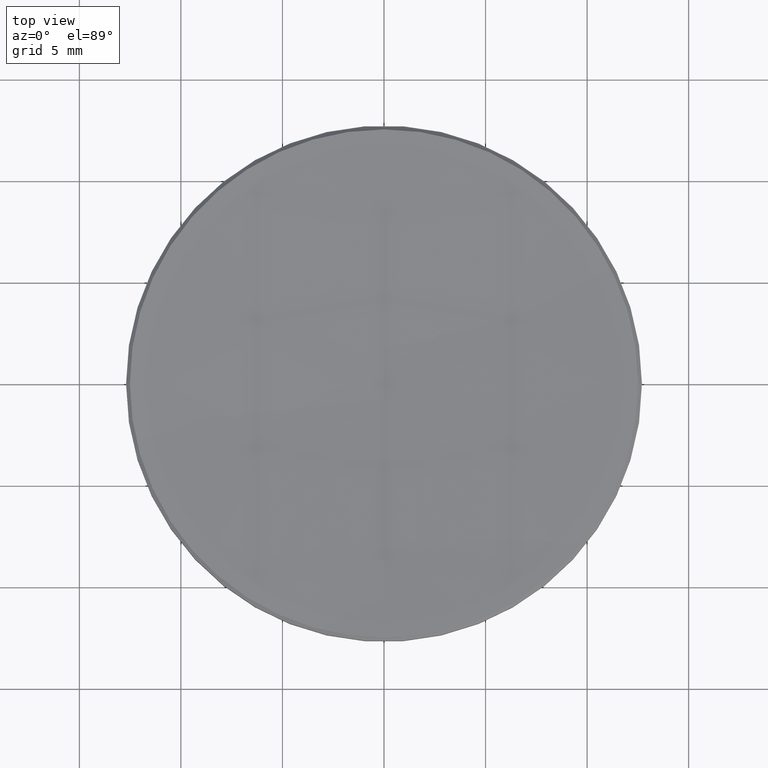
[diagram: clean part render]
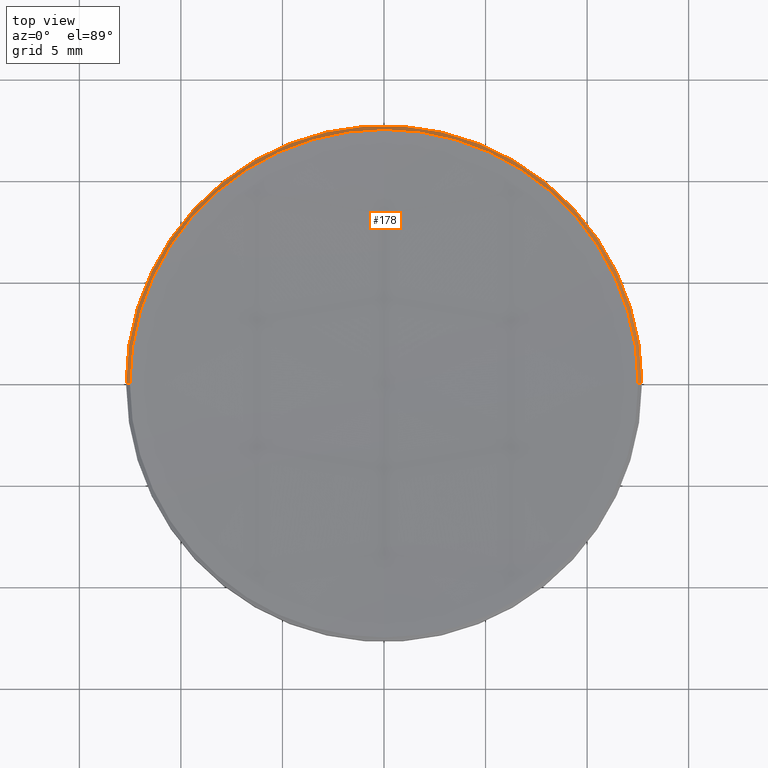
[diagram: same view with one face highlighted and labeled with its STEP entity id]
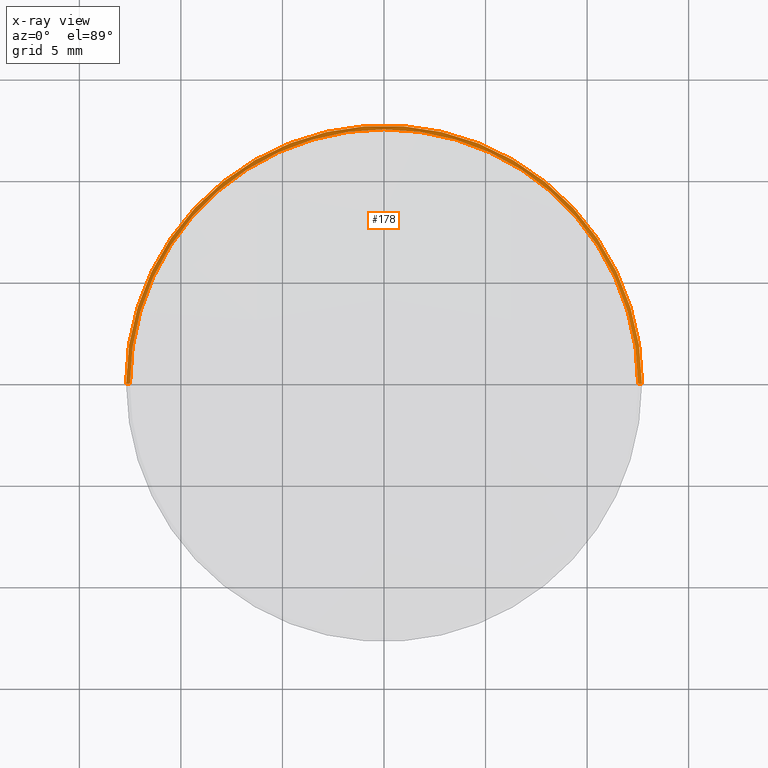
[diagram: x-ray of the same camera — body ghosted, the highlighted face saturated]
A machine part, top view. The second image highlights one B-rep face of the part: STEP entity #178.
The next image is the same camera in x-ray: the body ghosted, the highlighted face saturated — about 0% of this face is hidden behind the body in this view.
In plain terms, the highlighted conical surface has half-angle 45 deg.
Its self-contained STEP definition (entity closure, byte-faithful):
#3 = EDGE_CURVE ( 'NONE', #166, #197, #55, .T. ) ;
#6 = CARTESIAN_POINT ( 'NONE',  ( 12.51297231911478214, 1.532397149842335037E-15, 5.987027680885242731 ) ) ;
#10 = CARTESIAN_POINT ( 'NONE',  ( -12.69999999999999929, 0.000000000000000000, 5.800000000000027356 ) ) ;
#21 = VECTOR ( 'NONE', #104, 1000.000000000000114 ) ;
#40 = ORIENTED_EDGE ( 'NONE', *, *, #219, .F. ) ;
#41 = EDGE_CURVE ( 'NONE', #197, #220, #81, .T. ) ;
#45 = AXIS2_PLACEMENT_3D ( 'NONE', #252, #294, #321 ) ;
#55 = CIRCLE ( 'NONE', #45, 12.51297231911478569 ) ;
#57 = LINE ( 'NONE', #163, #21 ) ;
#62 = VECTOR ( 'NONE', #184, 1000.000000000000114 ) ;
#66 = ORIENTED_EDGE ( 'NONE', *, *, #207, .T. ) ;
#71 = ORIENTED_EDGE ( 'NONE', *, *, #185, .F. ) ;
#72 = DIRECTION ( 'NONE',  ( -0.000000000000000000, -0.000000000000000000, 1.000000000000000000 ) ) ;
#74 = CARTESIAN_POINT ( 'NONE',  ( 0.000000000000000000, 0.000000000000000000, 5.800000000000027356 ) ) ;
#81 = CIRCLE ( 'NONE', #280, 12.51297231911478569 ) ;
#92 = EDGE_LOOP ( 'NONE', ( #274, #66, #71, #40, #146 ) ) ;
#94 = VERTEX_POINT ( 'NONE', #10 ) ;
#104 = DIRECTION ( 'NONE',  ( -0.7071067811865507924, 0.000000000000000000, -0.7071067811865441310 ) ) ;
#125 = AXIS2_PLACEMENT_3D ( 'NONE', #74, #231, #332 ) ;
#146 = ORIENTED_EDGE ( 'NONE', *, *, #41, .F. ) ;
#163 = CARTESIAN_POINT ( 'NONE',  ( -12.51297231911478214, 0.000000000000000000, 5.987027680885242731 ) ) ;
#166 = VERTEX_POINT ( 'NONE', #260 ) ;
#177 = CARTESIAN_POINT ( 'NONE',  ( 0.000000000000000000, 0.000000000000000000, 5.987027680885242731 ) ) ;
#178 = ADVANCED_FACE ( 'NONE', ( #331 ), #309, .T. ) ;
#184 = DIRECTION ( 'NONE',  ( 0.7071067811865507924, 8.659560562354974766E-17, -0.7071067811865441310 ) ) ;
#185 = EDGE_CURVE ( 'NONE', #94, #298, #270, .T. ) ;
#197 = VERTEX_POINT ( 'NONE', #292 ) ;
#207 = EDGE_CURVE ( 'NONE', #166, #298, #287, .T. ) ;
#212 = CARTESIAN_POINT ( 'NONE',  ( 12.69999999999999929, 1.555301434917138433E-15, 5.800000000000027356 ) ) ;
#219 = EDGE_CURVE ( 'NONE', #220, #94, #57, .T. ) ;
#220 = VERTEX_POINT ( 'NONE', #316 ) ;
#226 = CARTESIAN_POINT ( 'NONE',  ( 0.000000000000000000, 0.000000000000000000, 5.987027680885187664 ) ) ;
#231 = DIRECTION ( 'NONE',  ( 0.000000000000000000, 0.000000000000000000, -1.000000000000000000 ) ) ;
#241 = AXIS2_PLACEMENT_3D ( 'NONE', #177, #282, #255 ) ;
#252 = CARTESIAN_POINT ( 'NONE',  ( 0.000000000000000000, 0.000000000000000000, 5.987027680885187664 ) ) ;
#255 = DIRECTION ( 'NONE',  ( -1.000000000000000000, 0.000000000000000000, 0.000000000000000000 ) ) ;
#260 = CARTESIAN_POINT ( 'NONE',  ( 12.51297231911478569, 1.543849292379736932E-15, 5.987027680885187664 ) ) ;
#269 = DIRECTION ( 'NONE',  ( 1.000000000000000000, 0.000000000000000000, 0.000000000000000000 ) ) ;
#270 = CIRCLE ( 'NONE', #125, 12.69999999999999929 ) ;
#274 = ORIENTED_EDGE ( 'NONE', *, *, #3, .F. ) ;
#280 = AXIS2_PLACEMENT_3D ( 'NONE', #226, #72, #269 ) ;
#282 = DIRECTION ( 'NONE',  ( 0.000000000000000000, 0.000000000000000000, -1.000000000000000000 ) ) ;
#287 = LINE ( 'NONE', #6, #62 ) ;
#292 = CARTESIAN_POINT ( 'NONE',  ( 0.000000000000000000, 12.51297231911454411, 5.987027680885187664 ) ) ;
#294 = DIRECTION ( 'NONE',  ( -0.000000000000000000, -0.000000000000000000, 1.000000000000000000 ) ) ;
#298 = VERTEX_POINT ( 'NONE', #212 ) ;
#309 = CONICAL_SURFACE ( 'NONE', #241, 12.51297231911478214, 0.7853981633974530530 ) ;
#316 = CARTESIAN_POINT ( 'NONE',  ( -12.51297231911478569, 0.000000000000000000, 5.987027680885187664 ) ) ;
#321 = DIRECTION ( 'NONE',  ( 1.000000000000000000, 0.000000000000000000, 0.000000000000000000 ) ) ;
#331 = FACE_OUTER_BOUND ( 'NONE', #92, .T. ) ;
#332 = DIRECTION ( 'NONE',  ( 1.000000000000000000, 0.000000000000000000, 0.000000000000000000 ) ) ;